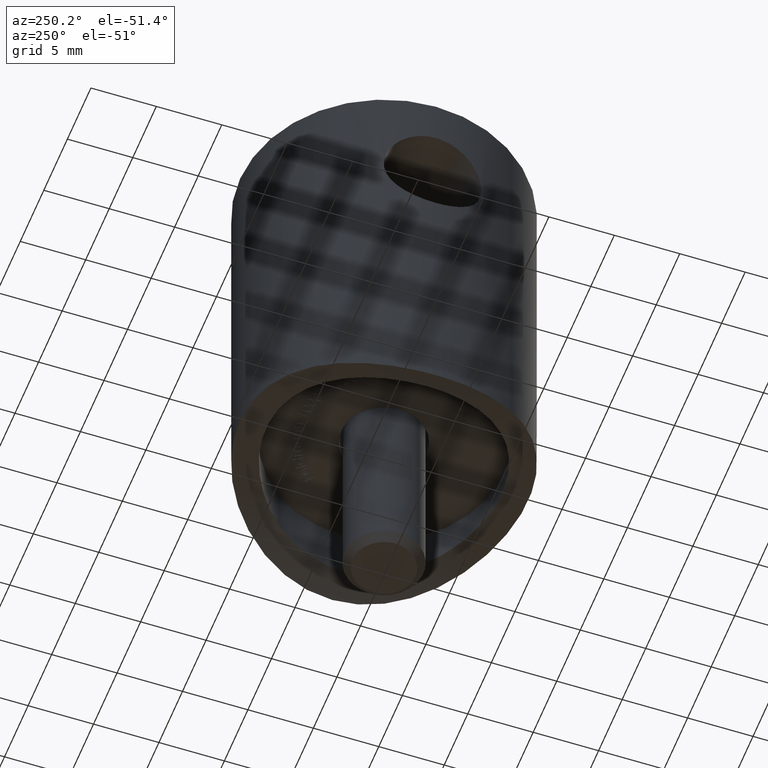
[diagram: clean part render]
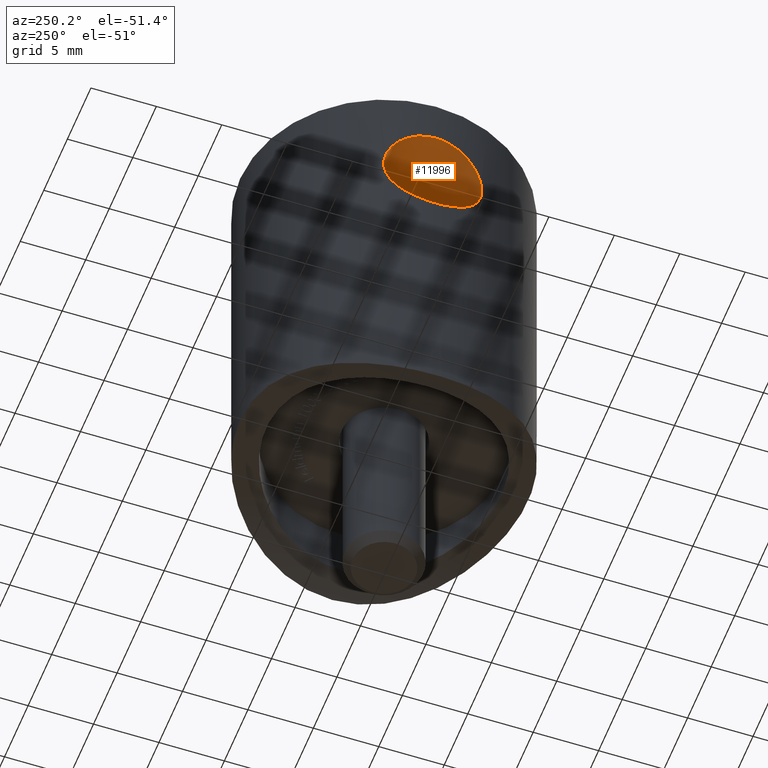
[diagram: same view with one face highlighted and labeled with its STEP entity id]
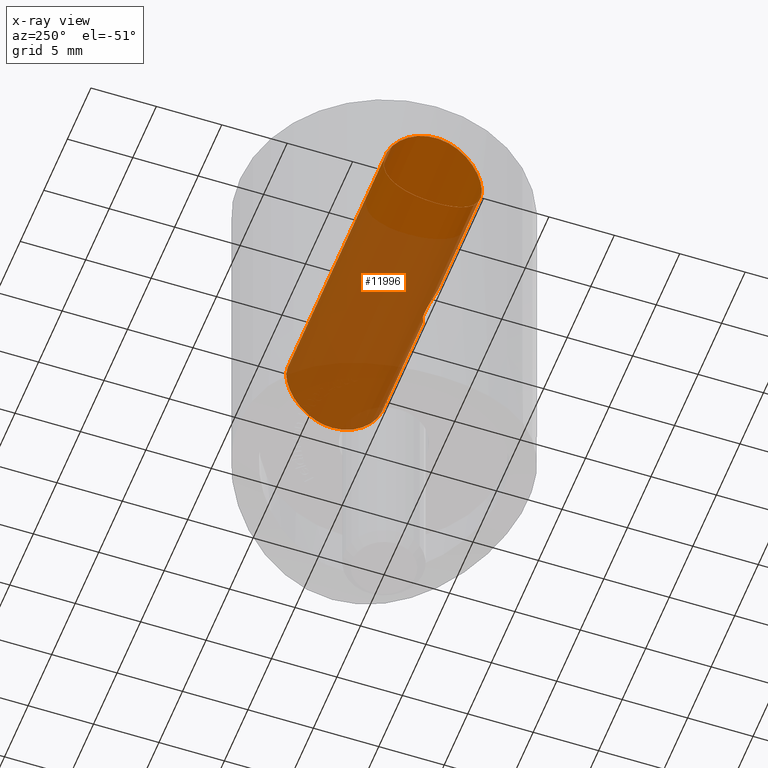
[diagram: x-ray of the same camera — body ghosted, the highlighted face saturated]
A machine part, auxiliary view. The second image highlights one B-rep face of the part: STEP entity #11996.
The next image is the same camera in x-ray: the body ghosted, the highlighted face saturated — about 70% of this face is hidden behind the body in this view.
In plain terms, the highlighted cylindrical surface (bore or boss wall) has radius 3.75 mm, axis along (1, 0, 0).
Its self-contained STEP definition (entity closure, byte-faithful):
#231 = EDGE_CURVE ( 'NONE', #7487, #7487, #14078, .T. ) ;
#500 = CARTESIAN_POINT ( 'NONE',  ( -10.63275843213798311, 2.824123972555439899, 0.9209495259034766734 ) ) ;
#680 = CARTESIAN_POINT ( 'NONE',  ( 1.883841423633109358, -3.633085917107080398, 4.338185544198482901 ) ) ;
#727 = CARTESIAN_POINT ( 'NONE',  ( -11.00003276275096198, -0.2445556584333137551, 7.150096104076023806 ) ) ;
#733 = CARTESIAN_POINT ( 'NONE',  ( -2.086548905661538722, -3.742414158765643872, 3.124637864359800510 ) ) ;
#791 = CARTESIAN_POINT ( 'NONE',  ( -10.38433889131838583, 3.628791964230503098, 4.377200943903710950 ) ) ;
#796 = CARTESIAN_POINT ( 'NONE',  ( 1.819111814869636801, -3.599624296539828183, 4.457982379418096386 ) ) ;
#797 = CARTESIAN_POINT ( 'NONE',  ( 10.71798711372333557, -2.481124809159016120, 0.5776982537552508568 ) ) ;
#842 = CARTESIAN_POINT ( 'NONE',  ( -10.50906015724648057, 3.252701950667618913, 1.517697639025899381 ) ) ;
#849 = CARTESIAN_POINT ( 'NONE',  ( 0.2873631940999726297, -3.117173891742428538, 5.484912407155809078 ) ) ;
#850 = CARTESIAN_POINT ( 'NONE',  ( 10.71851059081093283, -2.478933855611270776, 6.224335491978610690 ) ) ;
#903 = CARTESIAN_POINT ( 'NONE',  ( -10.99150359302899638, -0.4950624536135366793, -0.3252801805247700906 ) ) ;
#907 = CARTESIAN_POINT ( 'NONE',  ( -1.825968054642599370, -3.602558243719376385, 4.472634561910189710 ) ) ;
#908 = CARTESIAN_POINT ( 'NONE',  ( 10.40937885425879728, -3.557362811691873183, 4.611919087775657289 ) ) ;
#964 = CARTESIAN_POINT ( 'NONE',  ( -10.87499265123514469, -1.669402043811161418, 0.03310183413829668325 ) ) ;
#969 = CARTESIAN_POINT ( 'NONE',  ( 10.34105648623548568, 3.750006766465721952, 3.152964245166342661 ) ) ;
#978 = CARTESIAN_POINT ( 'NONE',  ( 11.00000000000000000, -1.443930549546350327E-16, -0.3500000000000030864 ) ) ;
#1033 = CARTESIAN_POINT ( 'NONE',  ( 10.35008321273575937, -3.725372842932206829, 3.894621052497162506 ) ) ;
#1081 = CARTESIAN_POINT ( 'NONE',  ( -0.2831034939518946025, -3.116716216648589999, 1.314400888719532867 ) ) ;
#1143 = CARTESIAN_POINT ( 'NONE',  ( -0.5593050644147351536, -3.153822211525646235, 1.370948722633735573 ) ) ;
#1500 = EDGE_CURVE ( 'NONE', #4700, #4700, #3415, .T. ) ;
#2063 = CARTESIAN_POINT ( 'NONE',  ( -2.100488201865952309, -3.750273391825827307, 3.267389762905903439 ) ) ;
#2119 = CARTESIAN_POINT ( 'NONE',  ( -10.58959297617900930, -2.997987436808903450, 5.705334380848598563 ) ) ;
#2125 = CARTESIAN_POINT ( 'NONE',  ( -1.579893614051203876, -3.484423467515718187, 2.010032920134825929 ) ) ;
#2174 = CARTESIAN_POINT ( 'NONE',  ( -10.47232722951106432, 3.367545204379542856, 5.068297738949381959 ) ) ;
#2181 = CARTESIAN_POINT ( 'NONE',  ( -1.761828530288944705E-16, -3.106847276581200745, 1.300000000000003819 ) ) ;
#2182 = CARTESIAN_POINT ( 'NONE',  ( 10.50946900887539925, -3.251303887255801328, 5.284328831529189863 ) ) ;
#2226 = CARTESIAN_POINT ( 'NONE',  ( -10.50946900887540458, 3.251303887255800884, 5.284328831529187198 ) ) ;
#2230 = CARTESIAN_POINT ( 'NONE',  ( 10.99999999999999467, -0.2497599630417688954, -0.3500000000000030864 ) ) ;
#2290 = CARTESIAN_POINT ( 'NONE',  ( -10.93497449603742666, 1.215798824794269262, 6.955855729849781177 ) ) ;
#2296 = CARTESIAN_POINT ( 'NONE',  ( 10.83941008244509163, -1.884141343226918730, 0.1484942451694369614 ) ) ;
#2350 = CARTESIAN_POINT ( 'NONE',  ( 10.47215576513923452, 3.368049373994114859, 1.733103302634683374 ) ) ;
#2410 = CARTESIAN_POINT ( 'NONE',  ( 10.34992289245837682, 3.725820230002461653, 2.908148717270820249 ) ) ;
#2463 = CARTESIAN_POINT ( 'NONE',  ( -1.761828530288944705E-16, -3.106847276581200745, 1.300000000000003819 ) ) ;
#2809 = CARTESIAN_POINT ( 'NONE',  ( -10.71798711372333024, 2.481124809159015676, 0.5776982537552513008 ) ) ;
#3234 = CARTESIAN_POINT ( 'NONE',  ( -10.99999999999999645, -2.439454888092384977E-16, -0.3500000000000030864 ) ) ;
#3370 = CARTESIAN_POINT ( 'NONE',  ( 1.580853278558738362, -3.484867979899869628, 4.788832388980562627 ) ) ;
#3415 = B_SPLINE_CURVE_WITH_KNOTS ( 'NONE', 3,
 ( #3234, #4139, #12325, #13596, #7662, #11326, #9176, #6848, #2809, #500, #6396, #842, #10294, #13077, #9136, #12898, #7657, #10363, #16985, #791, #10239, #2174, #2226, #4940, #15864, #11653, #3647, #3529, #13016, #2290, #4891, #14380, #4773, #727, #11700, #14324, #12961, #15808, #15748, #6272, #17091, #2119, #17200, #3589, #9015, #4833, #8907, #7767, #17151, #6212, #9070, #3421, #5001, #14259, #7709, #11759, #11525, #14439, #964, #6166, #6338, #903, #17035, #13136 ),
 .UNSPECIFIED., .T., .F.,
 ( 4, 2, 2, 2, 2, 2, 2, 2, 2, 2, 2, 2, 2, 2, 2, 2, 2, 2, 2, 2, 2, 2, 2, 2, 2, 2, 2, 2, 2, 2, 2, 4 ),
 ( 0.000000000000000000, 0.0007382494569924613007, 0.001476498913984922601, 0.002214748370977383685, 0.002952997827969846070, 0.003691247284962308021, 0.004429496741954769973, 0.005167746198947231924, 0.005905995655939693008, 0.006644245112932154092, 0.007382494569924617778, 0.008120744026917080596, 0.008858993483909541680, 0.009597242940902006234, 0.01033549239789446732, 0.01107374185488693187, 0.01181199131187939469, 0.01255024076887185924, 0.01328849022586432206, 0.01402673968285678661, 0.01476498913984925117, 0.01624148805383417507, 0.01697973751082663615, 0.01771798696781909724, 0.01845623642481155832, 0.01919448588180402288, 0.01993273533879648396, 0.02067098479578894504, 0.02140923425278140613, 0.02214748370977386721, 0.02288573316676632829, 0.02362398262375878938 ),
 .UNSPECIFIED. ) ;
#3421 = CARTESIAN_POINT ( 'NONE',  ( -10.47215576513923629, -3.368049373994113527, 1.733103302634679821 ) ) ;
#3426 = CARTESIAN_POINT ( 'NONE',  ( -2.031697871407081468, -3.712111749488729462, 2.850714645396734692 ) ) ;
#3529 = CARTESIAN_POINT ( 'NONE',  ( -10.83897786099367266, 1.886558884749229392, 6.650055604040319146 ) ) ;
#3535 = CARTESIAN_POINT ( 'NONE',  ( 1.667461551296572253, -3.525415621780490394, 4.683770417600091385 ) ) ;
#3536 = CARTESIAN_POINT ( 'NONE',  ( 10.38445892217090538, -3.628452350616251376, 2.421239985724306543 ) ) ;
#3589 = CARTESIAN_POINT ( 'NONE',  ( -10.40955582870981644, -3.556840867476817714, 4.613345872957582472 ) ) ;
#3595 = CARTESIAN_POINT ( 'NONE',  ( 10.63283914025867816, -2.823882816833054754, 5.879449509173533706 ) ) ;
#3647 = CARTESIAN_POINT ( 'NONE',  ( -10.76063179134625081, 2.291582193115867749, 6.378358089144823495 ) ) ;
#3653 = CARTESIAN_POINT ( 'NONE',  ( 10.95880613101530443, -0.9817425675553359543, 7.027677885358044385 ) ) ;
#3707 = CARTESIAN_POINT ( 'NONE',  ( 10.76121106076656453, 2.288860122691051657, 0.4195605451953431375 ) ) ;
#3770 = CARTESIAN_POINT ( 'NONE',  ( 10.34099645109633769, -3.750172320357266109, 3.644038959430600411 ) ) ;
#4057 = CARTESIAN_POINT ( 'NONE',  ( 11.00000000000000355, 0.2497599630417686178, -0.3500000000000033085 ) ) ;
#4139 = CARTESIAN_POINT ( 'NONE',  ( -10.99999999999999467, 0.2497599630417689509, -0.3500000000000030864 ) ) ;
#4700 = VERTEX_POINT ( 'NONE', #10197 ) ;
#4773 = CARTESIAN_POINT ( 'NONE',  ( -10.99996704100667877, 0.2474941381790446704, 7.149903320279731744 ) ) ;
#4833 = CARTESIAN_POINT ( 'NONE',  ( -10.35024099097652872, -3.724935343811505373, 3.897649050597928433 ) ) ;
#4840 = CARTESIAN_POINT ( 'NONE',  ( 2.099574183393379645, -3.749761543410033759, 3.253079996717612943 ) ) ;
#4891 = CARTESIAN_POINT ( 'NONE',  ( -10.95880613101530443, 0.9817425675553339559, 7.027677885358040832 ) ) ;
#4896 = CARTESIAN_POINT ( 'NONE',  ( 2.043725642889463678, -3.717678521624349308, 3.956226568542235089 ) ) ;
#4897 = CARTESIAN_POINT ( 'NONE',  ( 10.93497449603742311, -1.215798824794269928, 6.955855729849779401 ) ) ;
#4937 = CARTESIAN_POINT ( 'NONE',  ( -11.00000000000000000, 0.000000000000000000, 3.399999999999996803 ) ) ;
#4940 = CARTESIAN_POINT ( 'NONE',  ( -10.58942082823927500, 2.980617777952995429, 5.688578111921762215 ) ) ;
#4944 = CARTESIAN_POINT ( 'NONE',  ( 2.100824016717414366, -3.750461447965550921, 3.675186130699161335 ) ) ;
#4945 = CARTESIAN_POINT ( 'NONE',  ( 10.58959297617901107, 2.997987436808904782, 5.705334380848595899 ) ) ;
#5001 = CARTESIAN_POINT ( 'NONE',  ( -10.50938942164687617, -3.251618732956292668, 1.515940146406599576 ) ) ;
#5006 = CARTESIAN_POINT ( 'NONE',  ( 10.34106139473075281, 3.749993230722020066, 3.647241141891795380 ) ) ;
#5068 = CARTESIAN_POINT ( 'NONE',  ( -1.286385900141753025, -3.360986512383802527, 1.734589146361466439 ) ) ;
#5069 = CARTESIAN_POINT ( 'NONE',  ( 10.95921652336182817, 0.9766326139445675736, -0.2289100283374783662 ) ) ;
#5130 = CARTESIAN_POINT ( 'NONE',  ( 10.59006487021693133, 2.978391586902707555, 1.108299873128717916 ) ) ;
#6110 = CARTESIAN_POINT ( 'NONE',  ( 0.6869439581390910377, -3.179549468899755205, 1.410834195721962780 ) ) ;
#6166 = CARTESIAN_POINT ( 'NONE',  ( -10.93501302802506459, -1.215672005608975148, -0.1559876290480026462 ) ) ;
#6170 = CARTESIAN_POINT ( 'NONE',  ( -1.053628035315285372, -3.278953257320950776, 5.221585586802114598 ) ) ;
#6212 = CARTESIAN_POINT ( 'NONE',  ( -10.38427878397903648, -3.628966023915412009, 2.423137846016391261 ) ) ;
#6219 = CARTESIAN_POINT ( 'NONE',  ( 1.815686478894297018, -3.597892657576466924, 2.336209026886992834 ) ) ;
#6272 = CARTESIAN_POINT ( 'NONE',  ( -10.76084378530928198, -2.290578046412766522, 6.379117731621629872 ) ) ;
#6277 = CARTESIAN_POINT ( 'NONE',  ( 1.069441152690060015, -3.276839993159611275, 5.227601046963454401 ) ) ;
#6279 = CARTESIAN_POINT ( 'NONE',  ( 10.50383179172310122, 3.272521309557216984, 5.296418976492189401 ) ) ;
#6333 = AXIS2_PLACEMENT_3D ( 'NONE', #4937, #6503, #12119 ) ;
#6338 = CARTESIAN_POINT ( 'NONE',  ( -10.95921652336183350, -0.9766326139445657972, -0.2289100283374791156 ) ) ;
#6343 = CARTESIAN_POINT ( 'NONE',  ( -0.6799214162102761305, -3.177993726052246171, 5.391652778457370232 ) ) ;
#6344 = CARTESIAN_POINT ( 'NONE',  ( 10.93501302802506636, 1.215672005608977368, -0.1559876290480019245 ) ) ;
#6396 = CARTESIAN_POINT ( 'NONE',  ( -10.59000095808879571, 2.978639803027684607, 1.108529493573000790 ) ) ;
#6402 = CARTESIAN_POINT ( 'NONE',  ( 10.58942082823927144, -2.980617777952998093, 5.688578111921763103 ) ) ;
#6454 = CARTESIAN_POINT ( 'NONE',  ( 10.95919953862333429, -0.9768606267610954186, -0.2288591530901216420 ) ) ;
#6503 = DIRECTION ( 'NONE',  ( 1.000000000000000000, -0.000000000000000000, -0.000000000000000000 ) ) ;
#6848 = CARTESIAN_POINT ( 'NONE',  ( -10.76089843778298416, 2.290385196509300059, 0.4206688793347821420 ) ) ;
#7142 = FACE_OUTER_BOUND ( 'NONE', #14722, .T. ) ;
#7228 = EDGE_LOOP ( 'NONE', ( #12087 ) ) ;
#7475 = CARTESIAN_POINT ( 'NONE',  ( -2.085102249192944068, -3.741602649443515283, 3.686560286067588788 ) ) ;
#7487 = VERTEX_POINT ( 'NONE', #16997 ) ;
#7532 = CARTESIAN_POINT ( 'NONE',  ( -1.384036823307822628, -3.400099080822306163, 4.985061533481600193 ) ) ;
#7600 = CARTESIAN_POINT ( 'NONE',  ( 0.5604588506026176864, -3.154094099619748182, 5.428625945712211909 ) ) ;
#7601 = CARTESIAN_POINT ( 'NONE',  ( 10.99150359302899105, 0.4950624536135370124, -0.3252801805247697020 ) ) ;
#7657 = CARTESIAN_POINT ( 'NONE',  ( -10.34112209962642481, 3.749825829899132490, 3.150693579073733819 ) ) ;
#7662 = CARTESIAN_POINT ( 'NONE',  ( -10.93496518265985351, 1.216067739068124487, -0.1558390740964978594 ) ) ;
#7663 = CARTESIAN_POINT ( 'NONE',  ( 10.83911987051621395, 1.885732534353163459, 6.650523504676210784 ) ) ;
#7709 = CARTESIAN_POINT ( 'NONE',  ( -10.63278538839141341, -2.824044660073749213, 0.9208151359288596627 ) ) ;
#7715 = CARTESIAN_POINT ( 'NONE',  ( -1.278670863034232275, -3.358035378441690977, 5.071318913575396436 ) ) ;
#7767 = CARTESIAN_POINT ( 'NONE',  ( -10.34105648623548568, -3.750006766465723285, 3.152964245166336887 ) ) ;
#7774 = CARTESIAN_POINT ( 'NONE',  ( 10.76089843778298416, -2.290385196509298282, 0.4206688793347813649 ) ) ;
#7840 = CARTESIAN_POINT ( 'NONE',  ( 10.47232722951106432, -3.367545204379544188, 5.068297738949381070 ) ) ;
#8851 = CARTESIAN_POINT ( 'NONE',  ( 1.987098949861432651, -3.687683638254296348, 2.707067272675891534 ) ) ;
#8907 = CARTESIAN_POINT ( 'NONE',  ( -10.34106139473075281, -3.749993230722019621, 3.647241141891788274 ) ) ;
#8914 = CARTESIAN_POINT ( 'NONE',  ( -0.5465842785272456705, -3.151656709061034789, 5.432392131042908190 ) ) ;
#8967 = CARTESIAN_POINT ( 'NONE',  ( 1.296866814030358750, -3.362319813661262646, 5.073304048495767660 ) ) ;
#8968 = CARTESIAN_POINT ( 'NONE',  ( 10.41003236052403658, -3.555417399542265322, 2.183034158172001860 ) ) ;
#9015 = CARTESIAN_POINT ( 'NONE',  ( -10.38453477348497600, -3.628232272767059730, 4.379146806147447890 ) ) ;
#9020 = CARTESIAN_POINT ( 'NONE',  ( 10.63275843213799199, -2.824123972555440343, 0.9209495259034757852 ) ) ;
#9070 = CARTESIAN_POINT ( 'NONE',  ( -10.40983305181367236, -3.556006016357218691, 2.184630756938123142 ) ) ;
#9075 = CARTESIAN_POINT ( 'NONE',  ( -1.669558017732218014, -3.522837960951446412, 4.701725008673635742 ) ) ;
#9076 = CARTESIAN_POINT ( 'NONE',  ( 10.99150671944556557, -0.4960144378056947079, 7.125296630652952601 ) ) ;
#9136 = CARTESIAN_POINT ( 'NONE',  ( -10.38445892217090893, 3.628452350616251376, 2.421239985724307875 ) ) ;
#9140 = CARTESIAN_POINT ( 'NONE',  ( 10.76084378530928376, 2.290578046412765634, 6.379117731621629872 ) ) ;
#9176 = CARTESIAN_POINT ( 'NONE',  ( -10.83941008244509696, 1.884141343226920284, 0.1484942451694376830 ) ) ;
#9192 = CARTESIAN_POINT ( 'NONE',  ( 10.99167352781289786, 0.4925041697186225420, 7.125787232761856771 ) ) ;
#9996 = CARTESIAN_POINT ( 'NONE',  ( -0.9410830028552511495, -3.243986336133236392, 1.517752367012125347 ) ) ;
#10187 = CARTESIAN_POINT ( 'NONE',  ( -2.099484883948420588, -3.749711536263376832, 3.547646141948587850 ) ) ;
#10197 = CARTESIAN_POINT ( 'NONE',  ( -10.99999999999999645, 0.000000000000000000, -0.3500000000000030864 ) ) ;
#10239 = CARTESIAN_POINT ( 'NONE',  ( -10.40937885425879905, 3.557362811691872739, 4.611919087775659953 ) ) ;
#10245 = CARTESIAN_POINT ( 'NONE',  ( -1.667095938001429190, -3.525244501834264188, 2.115785371493088096 ) ) ;
#10294 = CARTESIAN_POINT ( 'NONE',  ( -10.47223203717380713, 3.367806822208789352, 1.732703999456621791 ) ) ;
#10301 = CARTESIAN_POINT ( 'NONE',  ( 10.38433889131837873, -3.628791964230503986, 4.377200943903709174 ) ) ;
#10363 = CARTESIAN_POINT ( 'NONE',  ( -10.34099645109633236, 3.750172320357266109, 3.644038959430601743 ) ) ;
#10368 = CARTESIAN_POINT ( 'NONE',  ( 1.292282727479493687, -3.360531449208624011, 1.723183277626410437 ) ) ;
#10369 = CARTESIAN_POINT ( 'NONE',  ( 10.87530377798831260, -1.667213767887357978, 6.767888805474951752 ) ) ;
#10415 = CARTESIAN_POINT ( 'NONE',  ( -2.028292002564738628, -3.710243582893357761, 3.961960620926885834 ) ) ;
#10416 = CARTESIAN_POINT ( 'NONE',  ( 10.93522634238201796, 1.213655068432574646, 6.956633872417620879 ) ) ;
#10426 = EDGE_CURVE ( 'NONE', #13407, #13407, #14432, .T. ) ;
#10477 = CARTESIAN_POINT ( 'NONE',  ( 10.40983305181367236, 3.556006016357221355, 2.184630756938127583 ) ) ;
#10533 = CARTESIAN_POINT ( 'NONE',  ( 10.87498413903323247, -1.669432319011750154, 0.03313083130443855717 ) ) ;
#10585 = CARTESIAN_POINT ( 'NONE',  ( -0.1419888913092433314, -3.106847276581200745, 1.300000000000004041 ) ) ;
#10651 = CARTESIAN_POINT ( 'NONE',  ( -1.389763985186885487, -3.402438390886309172, 1.819927729404075212 ) ) ;
#11326 = CARTESIAN_POINT ( 'NONE',  ( -10.87498413903323780, 1.669432319011751931, 0.03313083130443838370 ) ) ;
#11474 = CARTESIAN_POINT ( 'NONE',  ( 0.5527022556714635826, -3.152748832222199482, 1.369295887838132275 ) ) ;
#11525 = CARTESIAN_POINT ( 'NONE',  ( -10.76121106076656631, -2.288860122691050769, 0.4195605451953422493 ) ) ;
#11532 = CARTESIAN_POINT ( 'NONE',  ( 1.576868868098277865, -3.483056799784086888, 2.006654452454156523 ) ) ;
#11574 = CARTESIAN_POINT ( 'NONE',  ( -0.6904625523131816545, -3.180337822763945166, 1.412097881181097359 ) ) ;
#11653 = CARTESIAN_POINT ( 'NONE',  ( -10.71851059081093283, 2.478933855611269887, 6.224335491978613355 ) ) ;
#11657 = CARTESIAN_POINT ( 'NONE',  ( 10.87544509650079583, 1.666381630135890912, 6.768349060045010468 ) ) ;
#11700 = CARTESIAN_POINT ( 'NONE',  ( -10.99167352781289608, -0.4925041697186244294, 7.125787232761859435 ) ) ;
#11707 = CARTESIAN_POINT ( 'NONE',  ( 0.1419888913092424987, -3.106847276581200301, 1.300000000000003597 ) ) ;
#11708 = CARTESIAN_POINT ( 'NONE',  ( 10.38453477348497245, 3.628232272767057065, 4.379146806147444337 ) ) ;
#11759 = CARTESIAN_POINT ( 'NONE',  ( -10.71817117192273017, -2.480354830875092009, 0.5769828648615886735 ) ) ;
#11766 = CARTESIAN_POINT ( 'NONE',  ( 11.00000000000000000, -1.355252715606880543E-16, -0.3500000000000031974 ) ) ;
#11828 = CARTESIAN_POINT ( 'NONE',  ( 10.71817117192272661, 2.480354830875093786, 0.5769828648615905609 ) ) ;
#11886 = CARTESIAN_POINT ( 'NONE',  ( 10.50906015724648768, -3.252701950667618913, 1.517697639025899381 ) ) ;
#11996 = ADVANCED_FACE ( 'NONE', ( #17494, #14764, #7142 ), #17076, .F. ) ;
#12087 = ORIENTED_EDGE ( 'NONE', *, *, #10426, .F. ) ;
#12119 = DIRECTION ( 'NONE',  ( 0.000000000000000000, 0.000000000000000000, -1.000000000000000000 ) ) ;
#12325 = CARTESIAN_POINT ( 'NONE',  ( -10.99151025639372037, 0.4949883787220478726, -0.3253002485722080728 ) ) ;
#12838 = CARTESIAN_POINT ( 'NONE',  ( -0.2735756045861238994, -3.115931521978771546, 5.486750712575325650 ) ) ;
#12898 = CARTESIAN_POINT ( 'NONE',  ( -10.35002026628860960, 3.725551510093844776, 2.906134054752691043 ) ) ;
#12903 = CARTESIAN_POINT ( 'NONE',  ( -1.990973028061784333, -3.689769162576407968, 2.717805485007578348 ) ) ;
#12961 = CARTESIAN_POINT ( 'NONE',  ( -10.93522634238201796, -1.213655068432577755, 6.956633872417619990 ) ) ;
#12967 = CARTESIAN_POINT ( 'NONE',  ( 2.085166736450690284, -3.741641035382289981, 3.114623467457310557 ) ) ;
#13016 = CARTESIAN_POINT ( 'NONE',  ( -10.87530377798831260, 1.667213767887356202, 6.767888805474950864 ) ) ;
#13022 = CARTESIAN_POINT ( 'NONE',  ( 10.83897786099367266, -1.886558884749230947, 6.650055604040320034 ) ) ;
#13077 = CARTESIAN_POINT ( 'NONE',  ( -10.41003236052404191, 3.555417399542265322, 2.183034158172001860 ) ) ;
#13081 = CARTESIAN_POINT ( 'NONE',  ( 1.663882310956427357, -3.523722255019085647, 2.111642798210610295 ) ) ;
#13082 = CARTESIAN_POINT ( 'NONE',  ( 10.34112209962642126, -3.749825829899128493, 3.150693579073732931 ) ) ;
#13136 = CARTESIAN_POINT ( 'NONE',  ( -10.99999999999999645, -2.439454888092384977E-16, -0.3500000000000030864 ) ) ;
#13140 = CARTESIAN_POINT ( 'NONE',  ( 10.35024099097653050, 3.724935343811504485, 3.897649050597932874 ) ) ;
#13197 = CARTESIAN_POINT ( 'NONE',  ( 10.83945356060173459, 1.883823416132307971, 0.1483682032196232403 ) ) ;
#13260 = CARTESIAN_POINT ( 'NONE',  ( 10.99996704100668055, -0.2474941381790480843, 7.149903320279732633 ) ) ;
#13407 = VERTEX_POINT ( 'NONE', #978 ) ;
#13596 = CARTESIAN_POINT ( 'NONE',  ( -10.95919953862333962, 0.9768606267610956406, -0.2288591530901215865 ) ) ;
#14078 = B_SPLINE_CURVE_WITH_KNOTS ( 'NONE', 3,
 ( #2181, #11707, #17155, #11474, #6110, #17041, #10368, #11532, #13081, #6219, #17095, #8851, #16938, #12967, #4840, #4944, #4896, #680, #796, #3535, #3370, #8967, #6277, #15755, #7600, #849, #14444, #15580, #12838, #8914, #6343, #15813, #6170, #7715, #7532, #9075, #907, #14215, #10415, #7475, #10187, #2063, #733, #3426, #12903, #15641, #16990, #10245, #2125, #10651, #5068, #14563, #9996, #11574, #1143, #1081, #10585, #2463 ),
 .UNSPECIFIED., .T., .F.,
 ( 4, 2, 2, 2, 2, 2, 2, 2, 2, 2, 2, 2, 2, 2, 2, 2, 2, 2, 2, 2, 2, 2, 2, 2, 2, 2, 2, 2, 4 ),
 ( 0.000000000000000000, 0.0004189702031175159794, 0.0008379404062350319588, 0.001675880812470063484, 0.002094851015587579409, 0.002513821218705095117, 0.002932791421822610392, 0.003351761624940125667, 0.004189702031175157951, 0.004608672234292674093, 0.005027642437410190235, 0.005865582843645220784, 0.006284553046762736926, 0.006703523249880253068, 0.007122493452997769210, 0.007541463656115284485, 0.007960433859232800627, 0.008379404062350317636, 0.009217344468585351655, 0.009636314671702870399, 0.01005528487482038567, 0.01047425507793790442, 0.01089322528105542143, 0.01131219548417294017, 0.01173116568729045718, 0.01215013589040797419, 0.01256910609352549293, 0.01298807629664300821, 0.01340704649976052695 ),
 .UNSPECIFIED. ) ;
#14215 = CARTESIAN_POINT ( 'NONE',  ( -1.986265036590618260, -3.687233439353430509, 4.095289338629988229 ) ) ;
#14259 = CARTESIAN_POINT ( 'NONE',  ( -10.59006487021693488, -2.978391586902705779, 1.108299873128714363 ) ) ;
#14324 = CARTESIAN_POINT ( 'NONE',  ( -10.95905614091289770, -0.9790484153157361646, 7.028431487773914021 ) ) ;
#14380 = CARTESIAN_POINT ( 'NONE',  ( -10.99150671944556557, 0.4960144378056927650, 7.125296630652949936 ) ) ;
#14387 = CARTESIAN_POINT ( 'NONE',  ( 10.71865550678860224, 2.478361584775591986, 6.224928791103489623 ) ) ;
#14432 = B_SPLINE_CURVE_WITH_KNOTS ( 'NONE', 3,
 ( #11766, #2230, #15870, #6454, #14502, #10533, #2296, #7774, #797, #9020, #14629, #11886, #15931, #8968, #3536, #17156, #13082, #3770, #1033, #10301, #908, #7840, #2182, #6402, #3595, #850, #17261, #13022, #10369, #4897, #3653, #9076, #13260, #15815, #9192, #17208, #10416, #11657, #7663, #9140, #14387, #4945, #6279, #17096, #11708, #13140, #5006, #969, #2410, #14445, #10477, #2350, #15756, #5130, #17042, #11828, #3707, #13197, #15703, #6344, #5069, #7601, #4057, #14863 ),
 .UNSPECIFIED., .T., .F.,
 ( 4, 2, 2, 2, 2, 2, 2, 2, 2, 2, 2, 2, 2, 2, 2, 2, 2, 2, 2, 2, 2, 2, 2, 2, 2, 2, 2, 2, 2, 2, 2, 4 ),
 ( 0.000000000000000000, 0.0007382494569924620597, 0.001476498913984924119, 0.002214748370977386287, 0.002952997827969847371, 0.003691247284962308889, 0.004429496741954769973, 0.005167746198947231924, 0.005905995655939693008, 0.006644245112932154959, 0.007382494569924617778, 0.008120744026917080596, 0.008858993483909541680, 0.009597242940902004499, 0.01033549239789446558, 0.01107374185488692840, 0.01181199131187938949, 0.01255024076887185230, 0.01328849022586431512, 0.01402673968285677621, 0.01476498913984923902, 0.01624148805383416466, 0.01697973751082662575, 0.01771798696781909030, 0.01845623642481155138, 0.01919448588180401247, 0.01993273533879647702, 0.02067098479578893810, 0.02140923425278139919, 0.02214748370977386027, 0.02288573316676632483, 0.02362398262375878591 ),
 .UNSPECIFIED. ) ;
#14439 = CARTESIAN_POINT ( 'NONE',  ( -10.83945356060173282, -1.883823416132306194, 0.1483682032196227130 ) ) ;
#14444 = CARTESIAN_POINT ( 'NONE',  ( 0.1491226763624913243, -3.107271671358351917, 5.499372120195075375 ) ) ;
#14445 = CARTESIAN_POINT ( 'NONE',  ( 10.38427878397903648, 3.628966023915414230, 2.423137846016396590 ) ) ;
#14502 = CARTESIAN_POINT ( 'NONE',  ( 10.93496518265984996, -1.216067739068122933, -0.1558390740964974153 ) ) ;
#14563 = CARTESIAN_POINT ( 'NONE',  ( -1.061554550892319426, -3.281514850928229698, 1.583001394887618041 ) ) ;
#14629 = CARTESIAN_POINT ( 'NONE',  ( 10.59000095808879749, -2.978639803027683719, 1.108529493573000790 ) ) ;
#14642 = ORIENTED_EDGE ( 'NONE', *, *, #231, .T. ) ;
#14722 = EDGE_LOOP ( 'NONE', ( #15549 ) ) ;
#14764 = FACE_OUTER_BOUND ( 'NONE', #7228, .T. ) ;
#14863 = CARTESIAN_POINT ( 'NONE',  ( 11.00000000000000000, -1.355252715606880543E-16, -0.3500000000000031974 ) ) ;
#15549 = ORIENTED_EDGE ( 'NONE', *, *, #1500, .F. ) ;
#15580 = CARTESIAN_POINT ( 'NONE',  ( -0.1308809086560902835, -3.106449658254781365, 5.500588265083671935 ) ) ;
#15641 = CARTESIAN_POINT ( 'NONE',  ( -1.883553614087430716, -3.632932299365364326, 2.461070429897197265 ) ) ;
#15703 = CARTESIAN_POINT ( 'NONE',  ( 10.87499265123513759, 1.669402043811160086, 0.03310183413829660692 ) ) ;
#15748 = CARTESIAN_POINT ( 'NONE',  ( -10.83911987051621395, -1.885732534353165457, 6.650523504676208120 ) ) ;
#15755 = CARTESIAN_POINT ( 'NONE',  ( 0.6941608983528103627, -3.181152046543487266, 5.386604675993749147 ) ) ;
#15756 = CARTESIAN_POINT ( 'NONE',  ( 10.50938942164687617, 3.251618732956295332, 1.515940146406601796 ) ) ;
#15808 = CARTESIAN_POINT ( 'NONE',  ( -10.87544509650079760, -1.666381630135891578, 6.768349060045010468 ) ) ;
#15813 = CARTESIAN_POINT ( 'NONE',  ( -0.9342544870930570289, -3.241941152652151992, 5.285773707395676979 ) ) ;
#15815 = CARTESIAN_POINT ( 'NONE',  ( 11.00003276275096553, 0.2445556584333124506, 7.150096104076029135 ) ) ;
#15864 = CARTESIAN_POINT ( 'NONE',  ( -10.63283914025867816, 2.823882816833052090, 5.879449509173534594 ) ) ;
#15870 = CARTESIAN_POINT ( 'NONE',  ( 10.99151025639371859, -0.4949883787220479836, -0.3253002485722081283 ) ) ;
#15931 = CARTESIAN_POINT ( 'NONE',  ( 10.47223203717381246, -3.367806822208791573, 1.732703999456621347 ) ) ;
#16698 = EDGE_LOOP ( 'NONE', ( #14642 ) ) ;
#16938 = CARTESIAN_POINT ( 'NONE',  ( 2.029287502033149782, -3.710790358503719855, 2.842010467644263461 ) ) ;
#16985 = CARTESIAN_POINT ( 'NONE',  ( -10.35008321273576470, 3.725372842932205941, 3.894621052497163394 ) ) ;
#16990 = CARTESIAN_POINT ( 'NONE',  ( -1.818516695200579791, -3.599325339828989279, 2.341032055325198868 ) ) ;
#16997 = CARTESIAN_POINT ( 'NONE',  ( 0.000000000000000000, -3.106847276581201633, 1.300000000000003819 ) ) ;
#17035 = CARTESIAN_POINT ( 'NONE',  ( -10.99999999999999822, -0.2497599630417694505, -0.3500000000000030864 ) ) ;
#17041 = CARTESIAN_POINT ( 'NONE',  ( 1.064924754940025808, -3.275230683159840339, 1.569528568797767587 ) ) ;
#17042 = CARTESIAN_POINT ( 'NONE',  ( 10.63278538839140808, 2.824044660073750102, 0.9208151359288631044 ) ) ;
#17076 = CYLINDRICAL_SURFACE ( 'NONE', #6333, 3.750000000000000000 ) ;
#17091 = CARTESIAN_POINT ( 'NONE',  ( -10.71865550678859691, -2.478361584775593762, 6.224928791103483405 ) ) ;
#17095 = CARTESIAN_POINT ( 'NONE',  ( 1.880395277562874501, -3.631299323821817637, 2.455102332918278840 ) ) ;
#17096 = CARTESIAN_POINT ( 'NONE',  ( 10.40955582870981289, 3.556840867476817269, 4.613345872957585136 ) ) ;
#17151 = CARTESIAN_POINT ( 'NONE',  ( -10.34992289245837682, -3.725820230002460764, 2.908148717270816253 ) ) ;
#17155 = CARTESIAN_POINT ( 'NONE',  ( 0.2808106903988015213, -3.116600721859696055, 1.314242504332493233 ) ) ;
#17156 = CARTESIAN_POINT ( 'NONE',  ( 10.35002026628860960, -3.725551510093844776, 2.906134054752689710 ) ) ;
#17200 = CARTESIAN_POINT ( 'NONE',  ( -10.50383179172309589, -3.272521309557219205, 5.296418976492183184 ) ) ;
#17208 = CARTESIAN_POINT ( 'NONE',  ( 10.95905614091289770, 0.9790484153157352765, 7.028431487773914910 ) ) ;
#17261 = CARTESIAN_POINT ( 'NONE',  ( 10.76063179134625258, -2.291582193115869970, 6.378358089144824383 ) ) ;
#17494 = FACE_BOUND ( 'NONE', #16698, .T. ) ;